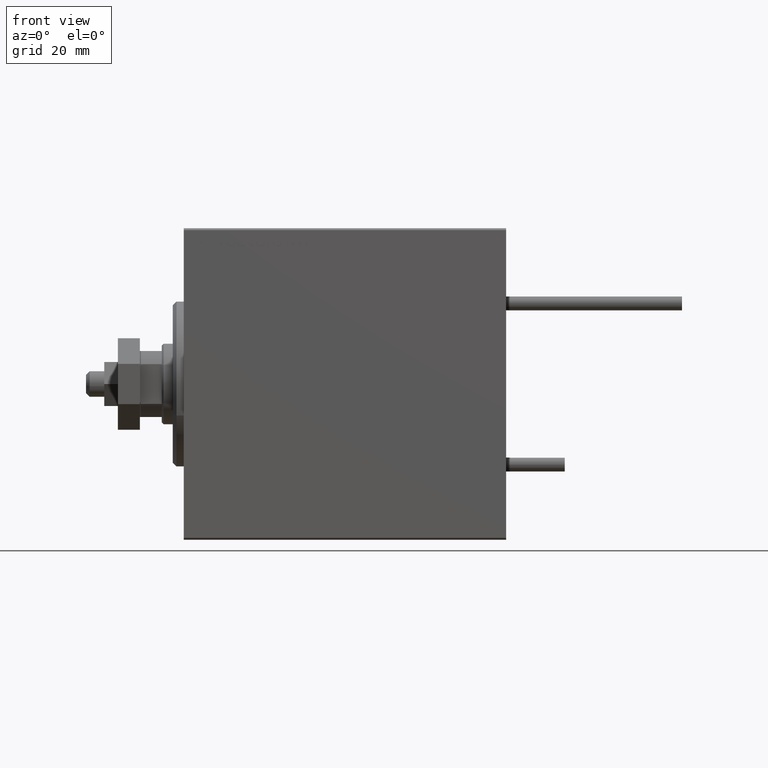
[diagram: clean part render]
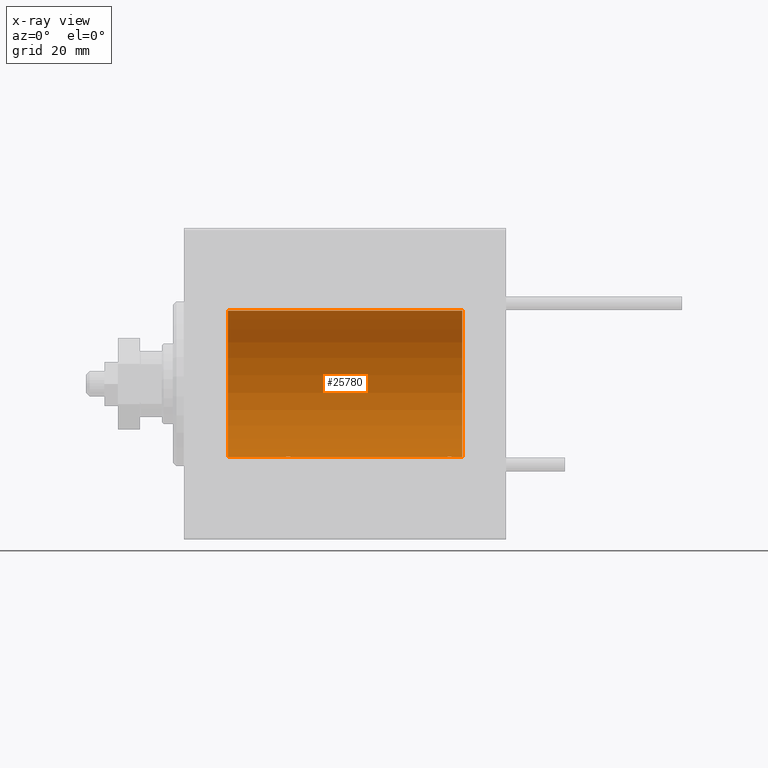
[diagram: x-ray — body ghosted, one internal face saturated and labeled with its STEP entity id]
A machine part, front view, then the same camera in x-ray: the body is ghosted and one INTERNAL B-rep face — a face not visible from any outside direction — is saturated and labeled: STEP entity #25780.
In plain terms, the highlighted cylindrical surface (partial cylindrical patch) has radius 20 mm, axis along (-1, -0, -0).
Its self-contained STEP definition (entity closure, byte-faithful):
#2 = AXIS2_PLACEMENT_3D ( 'NONE', #28365, #44169, #12356 ) ;
#176 = VECTOR ( 'NONE', #22590, 1000.000000000000000 ) ;
#1435 = CARTESIAN_POINT ( 'NONE',  ( 30.50000000000000000, 2.449293582768389958E-15, -20.00000000000000000 ) ) ;
#1710 = CARTESIAN_POINT ( 'NONE',  ( 76.00000000000000000, 2.449293598294706513E-15, -20.00000000000000000 ) ) ;
#2398 = CARTESIAN_POINT ( 'NONE',  ( 28.23819846102561826, 1.999905101582720279, -19.89975827978156886 ) ) ;
#2649 = CARTESIAN_POINT ( 'NONE',  ( 28.62981181290706090, 2.000047251570884477, -19.89974399317115683 ) ) ;
#3466 = CARTESIAN_POINT ( 'NONE',  ( 73.14371130639852936, 1.898109641280498527, -19.90978941500366517 ) ) ;
#3711 = CARTESIAN_POINT ( 'NONE',  ( 74.48691292011450571, 0.2631998640366452480, -19.99867931558986101 ) ) ;
#5241 = LINE ( 'NONE', #20744, #40873 ) ;
#6210 = CARTESIAN_POINT ( 'NONE',  ( 30.48691292011447374, 0.2631998640366455255, -19.99867931558985745 ) ) ;
#6972 = CARTESIAN_POINT ( 'NONE',  ( 30.50000000000000000, 2.449293582768389958E-15, -20.00000000000000000 ) ) ;
#7323 = LINE ( 'NONE', #50325, #176 ) ;
#7535 = CARTESIAN_POINT ( 'NONE',  ( 74.43573148867291422, 0.5196544277756690589, -19.99365919015135518 ) ) ;
#7785 = CARTESIAN_POINT ( 'NONE',  ( 74.39789687358864967, 0.6443418861413126031, -19.98998539619404724 ) ) ;
#8037 = CARTESIAN_POINT ( 'NONE',  ( 74.50000000000000000, 0.1305706983324447512, -20.00000000000000000 ) ) ;
#9309 = DIRECTION ( 'NONE',  ( -1.000000000000000000, -0.000000000000000000, -0.000000000000000000 ) ) ;
#9772 = CARTESIAN_POINT ( 'NONE',  ( 26.99384229619287012, 1.322305185229304625, -19.95645382900617548 ) ) ;
#10031 = CARTESIAN_POINT ( 'NONE',  ( 29.01899474186110695, 1.935912154109695082, -19.90610216711450420 ) ) ;
#11101 = CARTESIAN_POINT ( 'NONE',  ( 70.70278656943303019, 0.8872481584516642705, -19.98067755938510359 ) ) ;
#11251 = EDGE_CURVE ( 'NONE', #19439, #37129, #28960, .T. ) ;
#11348 = CARTESIAN_POINT ( 'NONE',  ( 71.97486091545005138, 1.947330458682943188, -19.90522393307485771 ) ) ;
#11417 = CARTESIAN_POINT ( 'NONE',  ( 76.00000000000000000, 2.449293598294706513E-15, -20.00000000000000000 ) ) ;
#11600 = CARTESIAN_POINT ( 'NONE',  ( 70.99384229619288078, 1.322305185229300184, -19.95645382900616482 ) ) ;
#12204 = ORIENTED_EDGE ( 'NONE', *, *, #44918, .T. ) ;
#12356 = DIRECTION ( 'NONE',  ( 0.000000000000000000, 0.000000000000000000, 1.000000000000000000 ) ) ;
#12859 = CARTESIAN_POINT ( 'NONE',  ( 11.99999999999999645, 0.000000000000000000, 20.00000000000000000 ) ) ;
#12933 = EDGE_CURVE ( 'NONE', #32838, #24569, #30152, .T. ) ;
#13647 = EDGE_CURVE ( 'NONE', #19439, #17918, #36570, .T. ) ;
#13650 = CARTESIAN_POINT ( 'NONE',  ( 11.99999999999999645, 2.449293598294706513E-15, -20.00000000000000000 ) ) ;
#13833 = CARTESIAN_POINT ( 'NONE',  ( 26.76423634872104884, 1.002099838626308248, -19.97517568592526160 ) ) ;
#14086 = CIRCLE ( 'NONE', #35992, 20.00000000000000000 ) ;
#14303 = ORIENTED_EDGE ( 'NONE', *, *, #11251, .T. ) ;
#14597 = VECTOR ( 'NONE', #37793, 1000.000000000000000 ) ;
#14925 = CARTESIAN_POINT ( 'NONE',  ( 70.50000000000000000, 0.1322335637814657239, -20.00000000000000355 ) ) ;
#15166 = CARTESIAN_POINT ( 'NONE',  ( 70.56384771616671969, 0.5179893069484544643, -19.99370013622813858 ) ) ;
#15673 = CARTESIAN_POINT ( 'NONE',  ( 70.76423634872104174, 1.002099838626304695, -19.97517568592526871 ) ) ;
#15809 = CARTESIAN_POINT ( 'NONE',  ( 26.56384771616671969, 0.5179893069484556856, -19.99370013622814568 ) ) ;
#16334 = VECTOR ( 'NONE', #17216, 1000.000000000000000 ) ;
#16524 = CARTESIAN_POINT ( 'NONE',  ( 76.00000000000000000, 0.000000000000000000, 0.000000000000000000 ) ) ;
#17084 = CARTESIAN_POINT ( 'NONE',  ( 11.99999999999999645, 0.000000000000000000, 0.000000000000000000 ) ) ;
#17216 = DIRECTION ( 'NONE',  ( -1.000000000000000000, -0.000000000000000000, -0.000000000000000000 ) ) ;
#17404 = CARTESIAN_POINT ( 'NONE',  ( 30.09007067689674741, 1.220099331833897294, -19.96304379627741099 ) ) ;
#17918 = VERTEX_POINT ( 'NONE', #1435 ) ;
#18167 = CARTESIAN_POINT ( 'NONE',  ( 29.50297226784953608, 1.735228749583830332, -19.92471474456648650 ) ) ;
#18422 = CARTESIAN_POINT ( 'NONE',  ( 30.39789687358864967, 0.6443418861413116039, -19.98998539619404724 ) ) ;
#18876 = CARTESIAN_POINT ( 'NONE',  ( 26.60234886833925927, 0.6450624715427553113, -19.98996196681220638 ) ) ;
#18991 = CARTESIAN_POINT ( 'NONE',  ( 73.38596189455839180, 1.797847595792761100, -19.91909332229798579 ) ) ;
#19232 = CARTESIAN_POINT ( 'NONE',  ( 71.27049887769368297, 1.598854313793175885, -19.93684595445884966 ) ) ;
#19439 = VERTEX_POINT ( 'NONE', #23834 ) ;
#19604 = AXIS2_PLACEMENT_3D ( 'NONE', #17084, #32624, #28779 ) ;
#20321 = ORIENTED_EDGE ( 'NONE', *, *, #48302, .F. ) ;
#20744 = CARTESIAN_POINT ( 'NONE',  ( 76.00000000000000000, 2.449293598294706513E-15, -20.00000000000000000 ) ) ;
#20978 = FACE_OUTER_BOUND ( 'NONE', #42877, .T. ) ;
#21436 = ORIENTED_EDGE ( 'NONE', *, *, #34964, .T. ) ;
#21979 = CARTESIAN_POINT ( 'NONE',  ( 30.43573148867292488, 0.5196544277756701691, -19.99365919015135518 ) ) ;
#22002 = ORIENTED_EDGE ( 'NONE', *, *, #24914, .F. ) ;
#22590 = DIRECTION ( 'NONE',  ( -1.000000000000000000, -0.000000000000000000, -0.000000000000000000 ) ) ;
#22802 = CARTESIAN_POINT ( 'NONE',  ( 72.62981181290707866, 2.000047251570880036, -19.89974399317116038 ) ) ;
#23553 = CARTESIAN_POINT ( 'NONE',  ( 74.50000000000001421, 2.449293582762867932E-15, -20.00000000000000000 ) ) ;
#23661 = DIRECTION ( 'NONE',  ( -1.000000000000000000, 0.000000000000000000, 0.000000000000000000 ) ) ;
#23834 = CARTESIAN_POINT ( 'NONE',  ( 70.50000000000000000, -5.133775462521235346E-15, -20.00000000000000000 ) ) ;
#24378 = CARTESIAN_POINT ( 'NONE',  ( 74.50000000000001421, 2.449293582762867932E-15, -20.00000000000000000 ) ) ;
#24569 = VERTEX_POINT ( 'NONE', #13650 ) ;
#24914 = EDGE_CURVE ( 'NONE', #50233, #37129, #42359, .T. ) ;
#25163 = ORIENTED_EDGE ( 'NONE', *, *, #12933, .T. ) ;
#25548 = CARTESIAN_POINT ( 'NONE',  ( 30.00738641543989260, 1.321069663197666388, -19.95654117037011588 ) ) ;
#25661 = CARTESIAN_POINT ( 'NONE',  ( 76.00000000000000000, 0.000000000000000000, 20.00000000000000000 ) ) ;
#25780 = ADVANCED_FACE ( 'NONE', ( #20978 ), #28623, .F. ) ;
#25805 = CARTESIAN_POINT ( 'NONE',  ( 27.97486091545001230, 1.947330458682949850, -19.90522393307485061 ) ) ;
#26315 = CARTESIAN_POINT ( 'NONE',  ( 29.38596189455837049, 1.797847595792762432, -19.91909332229799290 ) ) ;
#26885 = CARTESIAN_POINT ( 'NONE',  ( 73.71960275349746894, 1.590453176650917566, -19.93679350243184345 ) ) ;
#27132 = CARTESIAN_POINT ( 'NONE',  ( 70.90940266542450843, 1.219458756546260236, -19.96308513509967497 ) ) ;
#27376 = CARTESIAN_POINT ( 'NONE',  ( 74.00738641543991037, 1.321069663197662614, -19.95654117037011233 ) ) ;
#28365 = CARTESIAN_POINT ( 'NONE',  ( 76.00000000000000000, 0.000000000000000000, 0.000000000000000000 ) ) ;
#28623 = CYLINDRICAL_SURFACE ( 'NONE', #2, 20.00000000000000000 ) ;
#28779 = DIRECTION ( 'NONE',  ( 0.000000000000000000, 0.000000000000000000, 1.000000000000000000 ) ) ;
#28960 = B_SPLINE_CURVE_WITH_KNOTS ( 'NONE', 3,
 ( #35281, #14925, #35031, #15166, #30445, #11101, #15673, #27132, #11600, #19232, #38341, #11348, #34774, #22802, #31200, #31448, #3466, #18991, #46740, #26885, #42416, #27376, #42672, #46985, #42919, #7785, #7535, #3711, #8037, #23553 ),
 .UNSPECIFIED., .F., .F.,
 ( 4, 2, 2, 2, 2, 2, 2, 2, 2, 2, 2, 2, 2, 2, 4 ),
 ( 2.321975990544223827E-18, 0.0003910512220831165522, 0.0007821024441662306108, 0.001173153666249344886, 0.001564204888332458836, 0.002346307332498715360, 0.003128409776664972317, 0.003519460998748080629, 0.003910512220831188074, 0.004301563442914295952, 0.004692614664997402096, 0.005083665887080509975, 0.005474717109163616986, 0.005865768331246724865, 0.006256819553329831876 ),
 .UNSPECIFIED. ) ;
#29099 = CARTESIAN_POINT ( 'NONE',  ( 28.76241417820002155, 1.987020435121070516, -19.90106552791689154 ) ) ;
#29872 = CARTESIAN_POINT ( 'NONE',  ( 27.49354240926169268, 1.747830109444738156, -19.92373272380676852 ) ) ;
#30152 = CIRCLE ( 'NONE', #19604, 20.00000000000000000 ) ;
#30331 = CARTESIAN_POINT ( 'NONE',  ( 26.50000000000000355, -6.257798774011376898E-15, -20.00000000000000000 ) ) ;
#30445 = CARTESIAN_POINT ( 'NONE',  ( 70.60234886833930545, 0.6450624715427508704, -19.98996196681220994 ) ) ;
#31200 = CARTESIAN_POINT ( 'NONE',  ( 72.76241417820001800, 1.987020435121066742, -19.90106552791689154 ) ) ;
#31324 = ORIENTED_EDGE ( 'NONE', *, *, #13647, .F. ) ;
#31448 = CARTESIAN_POINT ( 'NONE',  ( 73.01899474186113537, 1.935912154109691752, -19.90610216711450775 ) ) ;
#32061 = DIRECTION ( 'NONE',  ( 0.000000000000000000, 0.000000000000000000, 1.000000000000000000 ) ) ;
#32624 = DIRECTION ( 'NONE',  ( -1.000000000000000000, 0.000000000000000000, 0.000000000000000000 ) ) ;
#32838 = VERTEX_POINT ( 'NONE', #12859 ) ;
#32946 = CARTESIAN_POINT ( 'NONE',  ( 30.29753901127163118, 0.8865903856744307143, -19.98070694681039683 ) ) ;
#33710 = CARTESIAN_POINT ( 'NONE',  ( 30.23489454601983795, 1.003547732426805617, -19.97510079925437054 ) ) ;
#33857 = VERTEX_POINT ( 'NONE', #49022 ) ;
#34774 = CARTESIAN_POINT ( 'NONE',  ( 72.23819846102561826, 1.999905101582715394, -19.89975827978156531 ) ) ;
#34964 = EDGE_CURVE ( 'NONE', #33857, #17918, #41875, .T. ) ;
#35031 = CARTESIAN_POINT ( 'NONE',  ( 70.51298505384674797, 0.2622407139811032684, -19.99868965376115071 ) ) ;
#35281 = CARTESIAN_POINT ( 'NONE',  ( 70.50000000000000000, -5.133775462521235346E-15, -20.00000000000000000 ) ) ;
#35992 = AXIS2_PLACEMENT_3D ( 'NONE', #16524, #23661, #32061 ) ;
#36570 = LINE ( 'NONE', #1710, #16334 ) ;
#36759 = CARTESIAN_POINT ( 'NONE',  ( 26.90940266542447645, 1.219458756546263789, -19.96308513509966787 ) ) ;
#37129 = VERTEX_POINT ( 'NONE', #24378 ) ;
#37516 = CARTESIAN_POINT ( 'NONE',  ( 26.70278656943304796, 0.8872481584516701547, -19.98067755938510004 ) ) ;
#37793 = DIRECTION ( 'NONE',  ( -1.000000000000000000, -0.000000000000000000, -0.000000000000000000 ) ) ;
#38230 = CARTESIAN_POINT ( 'NONE',  ( 26.51298505384673732, 0.2622407139811037680, -19.99868965376114716 ) ) ;
#38341 = CARTESIAN_POINT ( 'NONE',  ( 71.49354240926170689, 1.747830109444730384, -19.92373272380676497 ) ) ;
#40873 = VECTOR ( 'NONE', #9309, 1000.000000000000000 ) ;
#41603 = CARTESIAN_POINT ( 'NONE',  ( 27.27049887769365810, 1.598854313793178994, -19.93684595445884256 ) ) ;
#41854 = CARTESIAN_POINT ( 'NONE',  ( 29.71960275349742986, 1.590453176650915346, -19.93679350243183634 ) ) ;
#41875 = B_SPLINE_CURVE_WITH_KNOTS ( 'NONE', 3,
 ( #30331, #42058, #38230, #15809, #18876, #37516, #13833, #36759, #9772, #41603, #29872, #25805, #2398, #2649, #29099, #10031, #44905, #26315, #18167, #41854, #44644, #25548, #17404, #33710, #32946, #18422, #21979, #6210, #49230, #6972 ),
 .UNSPECIFIED., .F., .F.,
 ( 4, 2, 2, 2, 2, 2, 2, 2, 2, 2, 2, 2, 2, 2, 4 ),
 ( 5.963022395843225278E-20, 0.0003910512220831150344, 0.0007821024441662300687, 0.001173153666249344886, 0.001564204888332459921, 0.002346307332498689339, 0.003128409776664918974, 0.003519460998748033791, 0.003910512220831149043, 0.004301563442914263860, 0.004692614664997378678, 0.005083665887080494362, 0.005474717109163609180, 0.005865768331246723997, 0.006256819553329837948 ),
 .UNSPECIFIED. ) ;
#42058 = CARTESIAN_POINT ( 'NONE',  ( 26.50000000000001066, 0.1322335637814670561, -19.99999999999999645 ) ) ;
#42359 = LINE ( 'NONE', #45681, #14597 ) ;
#42416 = CARTESIAN_POINT ( 'NONE',  ( 73.82060165083835557, 1.507796451871721066, -19.94330239452388298 ) ) ;
#42672 = CARTESIAN_POINT ( 'NONE',  ( 74.09007067689672965, 1.220099331833893741, -19.96304379627740744 ) ) ;
#42877 = EDGE_LOOP ( 'NONE', ( #22002, #20321, #12204, #25163, #45863, #21436, #31324, #14303 ) ) ;
#42919 = CARTESIAN_POINT ( 'NONE',  ( 74.29753901127162408, 0.8865903856744312694, -19.98070694681039328 ) ) ;
#44169 = DIRECTION ( 'NONE',  ( -1.000000000000000000, -0.000000000000000000, -0.000000000000000000 ) ) ;
#44644 = CARTESIAN_POINT ( 'NONE',  ( 29.82060165083834846, 1.507796451871724175, -19.94330239452387943 ) ) ;
#44905 = CARTESIAN_POINT ( 'NONE',  ( 29.14371130639851160, 1.898109641280501636, -19.90978941500366872 ) ) ;
#44918 = EDGE_CURVE ( 'NONE', #48490, #32838, #7323, .T. ) ;
#45681 = CARTESIAN_POINT ( 'NONE',  ( 76.00000000000000000, 2.449293598294706513E-15, -20.00000000000000000 ) ) ;
#45863 = ORIENTED_EDGE ( 'NONE', *, *, #46890, .F. ) ;
#46740 = CARTESIAN_POINT ( 'NONE',  ( 73.50297226784952898, 1.735228749583831442, -19.92471474456648650 ) ) ;
#46890 = EDGE_CURVE ( 'NONE', #33857, #24569, #5241, .T. ) ;
#46985 = CARTESIAN_POINT ( 'NONE',  ( 74.23489454601981663, 1.003547732426802730, -19.97510079925436699 ) ) ;
#48302 = EDGE_CURVE ( 'NONE', #48490, #50233, #14086, .T. ) ;
#48490 = VERTEX_POINT ( 'NONE', #25661 ) ;
#49022 = CARTESIAN_POINT ( 'NONE',  ( 26.50000000000000355, -6.257798774011376898E-15, -20.00000000000000000 ) ) ;
#49230 = CARTESIAN_POINT ( 'NONE',  ( 30.50000000000000000, 0.1305706983324451675, -19.99999999999999289 ) ) ;
#50233 = VERTEX_POINT ( 'NONE', #11417 ) ;
#50325 = CARTESIAN_POINT ( 'NONE',  ( 76.00000000000000000, 0.000000000000000000, 20.00000000000000000 ) ) ;